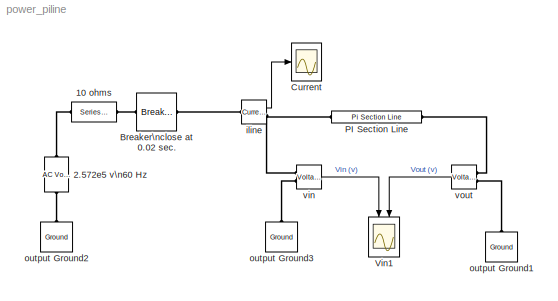
MODEL power_piline
KIND model
BLOCK [Reference] 10 ohms  REF=powerlib/Elements/Series RLC Branch
  AttributesFormatString = \\n
  Capacitance = inf
  Inductance = 0
  LConnTagsString = __new0
  Measurements = None
  PhysicalDomain = powersysdomain
  PortType = p1
  Ports = [0, 0, 0, 0, 0, 1, 1]
  RConnTagsString = __new0
  Resistance = 10
  SourceBlock = powerlib/Elements/Series RLC Branch
  SourceType = Series RLC Branch
  SubClassName = unknown
BLOCK [Reference] 2.572e5 v\n60 Hz   REF=powerlib/Electrical\nSources/AC Voltage Source
  Amplitude = (315e3*sqrt(2))/sqrt(30)
  AttributesFormatString = \\n
  Description = source block
  Frequency = 60
  Measurements = None
  Phase = 0
  Ports = [0, 0, 0, 0, 0, 1, 1]
  SampleTime = 0
  SourceBlock = powerlib/Electrical\nSources/AC Voltage Source
  SourceType = AC Voltage Source
BLOCK [Reference] Breaker\nclose at 0.02 sec.  REF=powerlib/Elements/Breaker
  AttributesFormatString = \\n
  BreakerResistance = 1e-1
  External = off
  InitialState = 0
  Measurements = None
  Ports = [0, 0, 0, 0, 0, 1, 1]
  SnubberCapacitance = 0
  SnubberResistance = inf
  SourceBlock = powerlib/Elements/Breaker
  SourceType = Breaker
  SwitchingTimes = [ .02 ]
BLOCK [Scope] Current
  DataFormat = Array
  MaxDataPoints = 5000000
  NumInputPorts = 1
  Ports = [1]
  TickLabels = on
  TimeRange = 0.05
  YMax = 100
  YMin = -100
BLOCK [Reference] PI Section Line  REF=powerlib/Elements/Pi Section Line
  AttributesFormatString = \\n
  Capacitance = 8.6e-09
  Frequency = 60
  Inductance = 2e-03
  LConnTagsString = __new0
  Length = 100
  Measurements = None
  PhysicalDomain = powersysdomain
  PiSections = 1
  PortType = p1
  Ports = [0, 0, 0, 0, 0, 1, 1]
  RConnTagsString = __new0
  Resistance = 0.2568
  SourceBlock = powerlib/Elements/Pi Section Line
  SourceType = Pi Section Line
  SubClassName = unknown
BLOCK [Scope] Vin1
  DataFormat = Array
  LimitDataPoints = off
  NumInputPorts = 2
  Ports = [2]
  TickLabels = on
  TimeRange = 0.05
  YMax = 100000~5
  YMin = -100000~-5
BLOCK [Reference] iline  REF=powerlib/Measurements/Current Measurement
  AttributesFormatString = \\n
  OutputType = Magnitude
  PSBequivalent = 0
  PhasorSimulation = off
  Ports = [0, 1, 0, 0, 0, 1, 1]
  SourceBlock = powerlib/Measurements/Current Measurement
  SourceType = Current Measurement
  Tag = PoWeRsYsTeMmEaSuReMeNt
BLOCK [Reference] output Ground1  REF=powerlib/Elements/Ground
  AttributesFormatString = \\n
  LConnTagsString = a
  PhysicalDomain = powersysdomain
  PortType = p1
  Ports = [0, 0, 0, 0, 0, 1]
  SourceBlock = powerlib/Elements/Ground
  SourceType = Ground
  SubClassName = unknown
BLOCK [Reference] output Ground2  REF=powerlib/Elements/Ground
  AttributesFormatString = \\n
  LConnTagsString = a
  PhysicalDomain = powersysdomain
  PortType = p1
  Ports = [0, 0, 0, 0, 0, 1]
  SourceBlock = powerlib/Elements/Ground
  SourceType = Ground
  SubClassName = unknown
BLOCK [Reference] output Ground3  REF=powerlib/Elements/Ground
  AttributesFormatString = \\n
  LConnTagsString = a
  PhysicalDomain = powersysdomain
  PortType = p1
  Ports = [0, 0, 0, 0, 0, 1]
  SourceBlock = powerlib/Elements/Ground
  SourceType = Ground
  SubClassName = unknown
BLOCK [Reference] vin  REF=powerlib/Measurements/Voltage Measurement
  AttributesFormatString = \\n
  OutputType = Magnitude
  PSBequivalent = 0
  PhasorSimulation = off
  Ports = [0, 1, 0, 0, 0, 2]
  SourceBlock = powerlib/Measurements/Voltage Measurement
  SourceType = Voltage Measurement
  Tag = PoWeRsYsTeMmEaSuReMeNt
BLOCK [Reference] vout  REF=powerlib/Measurements/Voltage Measurement
  AttributesFormatString = \\n
  OutputType = Magnitude
  PSBequivalent = 0
  PhasorSimulation = off
  Ports = [0, 1, 0, 0, 0, 2]
  SourceBlock = powerlib/Measurements/Voltage Measurement
  SourceType = Voltage Measurement
  Tag = PoWeRsYsTeMmEaSuReMeNt
LINE iline:1 -> Current:1
LINE vin:1 -> Vin1:1
LINE vout:1 -> Vin1:2
PLINE 10 ohms:LConn1 -- 2.572e5 v\n60 Hz :RConn1
PLINE 10 ohms:RConn1 -- Breaker\nclose at 0.02 sec.:LConn1
PLINE 2.572e5 v\n60 Hz :LConn1 -- output Ground2:LConn1
PLINE Breaker\nclose at 0.02 sec.:RConn1 -- iline:LConn1
PNET net1: PI Section Line:LConn1 -- iline:RConn1 -- vin:LConn1
PLINE PI Section Line:RConn1 -- vout:LConn1
PLINE output Ground1:LConn1 -- vout:LConn2
PLINE output Ground3:LConn1 -- vin:LConn2
note: PNET lines group multi-terminal physical nets as a canonical sorted terminal list (undirected conserving connections); 2-terminal nets keep the pairwise PLINE form
